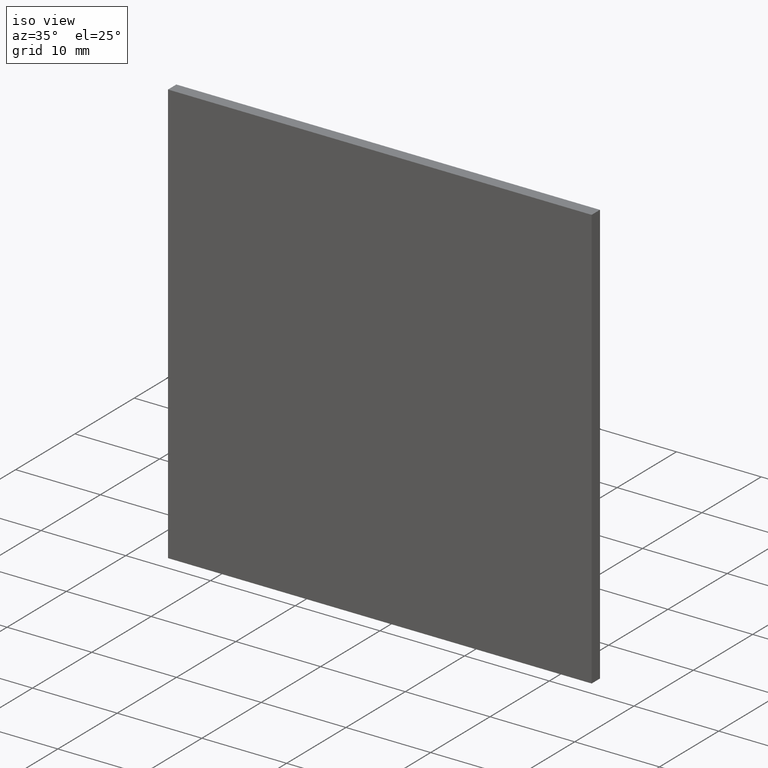
[diagram: clean part render]
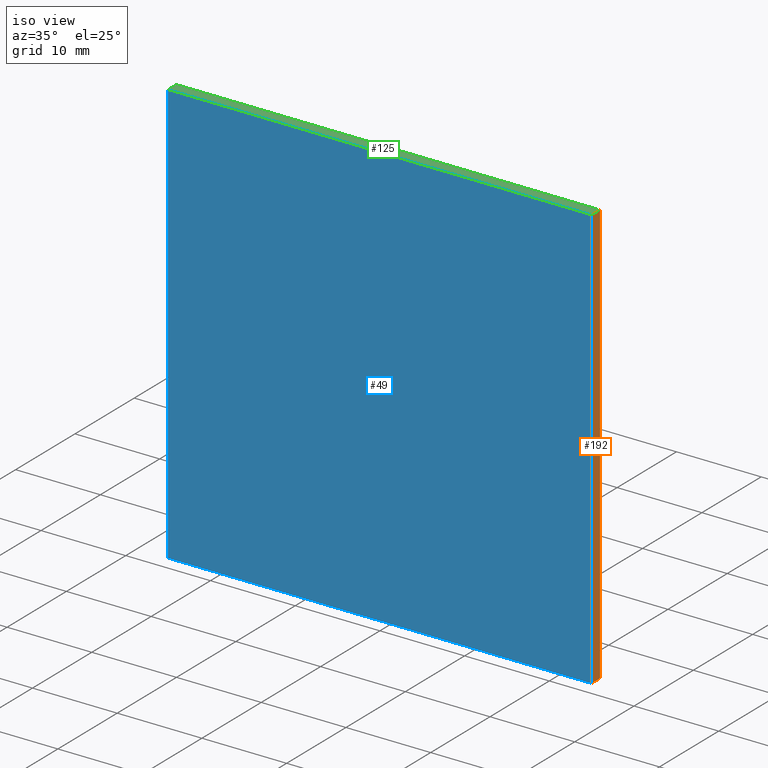
[diagram: same view with three faces highlighted in distinct colors, each labeled with its STEP entity id]
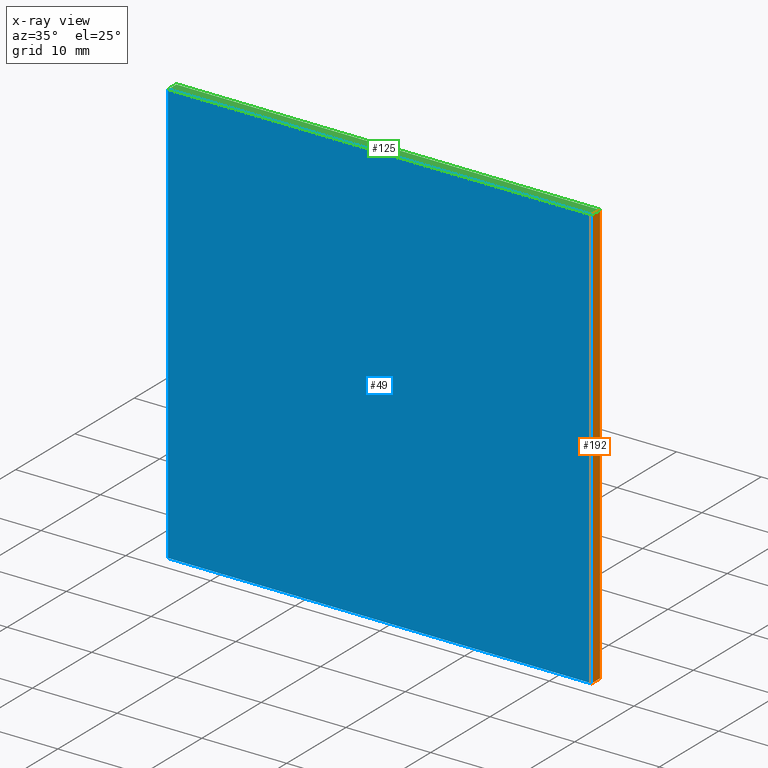
[diagram: x-ray of the same camera — body ghosted, the three highlighted faces saturated]
A machine part, iso view with three faces highlighted in distinct colors.
The next image is the same camera in x-ray (body ghosted, the three faces saturated) — at least one of them is partly hidden behind the body in this view.
Their STEP definitions:

[orange] entity #192 — the highlighted planar face has unit normal (-1, 0, 0).
#5 = VECTOR ( 'NONE', #168, 1000.000000000000000 ) ;
#21 = PLANE ( 'NONE',  #177 ) ;
#28 = DIRECTION ( 'NONE',  ( 0.0000000000000000000, 0.0000000000000000000, 1.000000000000000000 ) ) ;
#35 = ORIENTED_EDGE ( 'NONE', *, *, #82, .F. ) ;
#37 = DIRECTION ( 'NONE',  ( 0.0000000000000000000, 0.0000000000000000000, -1.000000000000000000 ) ) ;
#53 = EDGE_LOOP ( 'NONE', ( #176, #35, #113, #154 ) ) ;
#59 = LINE ( 'NONE', #165, #5 ) ;
#61 = DIRECTION ( 'NONE',  ( 0.0000000000000000000, 0.0000000000000000000, -1.000000000000000000 ) ) ;
#71 = CARTESIAN_POINT ( 'NONE',  ( 24.99999999999999600, 1.399999999999999900, 24.99999999999999600 ) ) ;
#77 = VERTEX_POINT ( 'NONE', #152 ) ;
#82 = EDGE_CURVE ( 'NONE', #148, #156, #59, .T. ) ;
#86 = DIRECTION ( 'NONE',  ( -1.000000000000000000, 0.0000000000000000000, 0.0000000000000000000 ) ) ;
#95 = CARTESIAN_POINT ( 'NONE',  ( 24.99999999999999600, 1.399999999999999900, 24.99999999999999600 ) ) ;
#105 = CARTESIAN_POINT ( 'NONE',  ( 24.99999999999999600, 0.0000000000000000000, 24.99999999999999600 ) ) ;
#110 = FACE_OUTER_BOUND ( 'NONE', #53, .T. ) ;
#111 = EDGE_CURVE ( 'NONE', #77, #156, #118, .T. ) ;
#112 = VECTOR ( 'NONE', #115, 1000.000000000000000 ) ;
#113 = ORIENTED_EDGE ( 'NONE', *, *, #169, .F. ) ;
#115 = DIRECTION ( 'NONE',  ( -0.0000000000000000000, -1.000000000000000000, -0.0000000000000000000 ) ) ;
#118 = LINE ( 'NONE', #105, #132 ) ;
#128 = EDGE_CURVE ( 'NONE', #193, #77, #170, .T. ) ;
#132 = VECTOR ( 'NONE', #61, 1000.000000000000000 ) ;
#148 = VERTEX_POINT ( 'NONE', #182 ) ;
#152 = CARTESIAN_POINT ( 'NONE',  ( 24.99999999999999600, 0.0000000000000000000, 24.99999999999999600 ) ) ;
#154 = ORIENTED_EDGE ( 'NONE', *, *, #128, .T. ) ;
#156 = VERTEX_POINT ( 'NONE', #178 ) ;
#165 = CARTESIAN_POINT ( 'NONE',  ( 24.99999999999999600, 1.399999999999999900, -25.00000000000000400 ) ) ;
#166 = LINE ( 'NONE', #202, #174 ) ;
#167 = CARTESIAN_POINT ( 'NONE',  ( 24.99999999999999600, 1.399999999999999900, 24.99999999999999600 ) ) ;
#168 = DIRECTION ( 'NONE',  ( -0.0000000000000000000, -1.000000000000000000, -0.0000000000000000000 ) ) ;
#169 = EDGE_CURVE ( 'NONE', #193, #148, #166, .T. ) ;
#170 = LINE ( 'NONE', #167, #112 ) ;
#174 = VECTOR ( 'NONE', #37, 1000.000000000000000 ) ;
#176 = ORIENTED_EDGE ( 'NONE', *, *, #111, .T. ) ;
#177 = AXIS2_PLACEMENT_3D ( 'NONE', #71, #86, #28 ) ;
#178 = CARTESIAN_POINT ( 'NONE',  ( 24.99999999999999600, 0.0000000000000000000, -25.00000000000000400 ) ) ;
#182 = CARTESIAN_POINT ( 'NONE',  ( 24.99999999999999600, 1.399999999999999900, -25.00000000000000400 ) ) ;
#192 = ADVANCED_FACE ( 'NONE', ( #110 ), #21, .F. ) ;
#193 = VERTEX_POINT ( 'NONE', #95 ) ;
#202 = CARTESIAN_POINT ( 'NONE',  ( 24.99999999999999600, 1.399999999999999900, 24.99999999999999600 ) ) ;

[blue] entity #49 — the highlighted planar face has unit normal (0, -1, 0).
#6 = CARTESIAN_POINT ( 'NONE',  ( -25.00000000000000400, 0.0000000000000000000, 24.99999999999999600 ) ) ;
#25 = DIRECTION ( 'NONE',  ( 1.000000000000000000, 0.0000000000000000000, 0.0000000000000000000 ) ) ;
#26 = DIRECTION ( 'NONE',  ( 0.0000000000000000000, -0.0000000000000000000, -1.000000000000000000 ) ) ;
#30 = EDGE_LOOP ( 'NONE', ( #90, #47, #108, #122 ) ) ;
#32 = VECTOR ( 'NONE', #186, 1000.000000000000000 ) ;
#36 = PLANE ( 'NONE',  #52 ) ;
#47 = ORIENTED_EDGE ( 'NONE', *, *, #119, .F. ) ;
#49 = ADVANCED_FACE ( 'NONE', ( #199 ), #36, .T. ) ;
#52 = AXIS2_PLACEMENT_3D ( 'NONE', #188, #145, #26 ) ;
#61 = DIRECTION ( 'NONE',  ( 0.0000000000000000000, 0.0000000000000000000, -1.000000000000000000 ) ) ;
#69 = VERTEX_POINT ( 'NONE', #85 ) ;
#77 = VERTEX_POINT ( 'NONE', #152 ) ;
#85 = CARTESIAN_POINT ( 'NONE',  ( -25.00000000000000400, 0.0000000000000000000, 24.99999999999999600 ) ) ;
#88 = LINE ( 'NONE', #189, #100 ) ;
#90 = ORIENTED_EDGE ( 'NONE', *, *, #111, .F. ) ;
#97 = EDGE_CURVE ( 'NONE', #158, #69, #102, .T. ) ;
#100 = VECTOR ( 'NONE', #114, 1000.000000000000000 ) ;
#102 = LINE ( 'NONE', #150, #32 ) ;
#105 = CARTESIAN_POINT ( 'NONE',  ( 24.99999999999999600, 0.0000000000000000000, 24.99999999999999600 ) ) ;
#108 = ORIENTED_EDGE ( 'NONE', *, *, #97, .F. ) ;
#111 = EDGE_CURVE ( 'NONE', #77, #156, #118, .T. ) ;
#114 = DIRECTION ( 'NONE',  ( -1.000000000000000000, -0.0000000000000000000, -0.0000000000000000000 ) ) ;
#118 = LINE ( 'NONE', #105, #132 ) ;
#119 = EDGE_CURVE ( 'NONE', #69, #77, #126, .T. ) ;
#122 = ORIENTED_EDGE ( 'NONE', *, *, #139, .F. ) ;
#126 = LINE ( 'NONE', #6, #129 ) ;
#129 = VECTOR ( 'NONE', #25, 1000.000000000000000 ) ;
#132 = VECTOR ( 'NONE', #61, 1000.000000000000000 ) ;
#139 = EDGE_CURVE ( 'NONE', #156, #158, #88, .T. ) ;
#145 = DIRECTION ( 'NONE',  ( 0.0000000000000000000, -1.000000000000000000, 0.0000000000000000000 ) ) ;
#150 = CARTESIAN_POINT ( 'NONE',  ( -25.00000000000000400, 0.0000000000000000000, 24.99999999999999600 ) ) ;
#152 = CARTESIAN_POINT ( 'NONE',  ( 24.99999999999999600, 0.0000000000000000000, 24.99999999999999600 ) ) ;
#156 = VERTEX_POINT ( 'NONE', #178 ) ;
#158 = VERTEX_POINT ( 'NONE', #180 ) ;
#178 = CARTESIAN_POINT ( 'NONE',  ( 24.99999999999999600, 0.0000000000000000000, -25.00000000000000400 ) ) ;
#180 = CARTESIAN_POINT ( 'NONE',  ( -25.00000000000000400, 0.0000000000000000000, -25.00000000000000400 ) ) ;
#186 = DIRECTION ( 'NONE',  ( -0.0000000000000000000, -0.0000000000000000000, 1.000000000000000000 ) ) ;
#188 = CARTESIAN_POINT ( 'NONE',  ( 0.0000000000000000000, 0.0000000000000000000, 0.0000000000000000000 ) ) ;
#189 = CARTESIAN_POINT ( 'NONE',  ( -25.00000000000000400, 0.0000000000000000000, -25.00000000000000400 ) ) ;
#199 = FACE_OUTER_BOUND ( 'NONE', #30, .T. ) ;

[green] entity #125 — the highlighted planar face has unit normal (0, 0, -1).
#2 = LINE ( 'NONE', #22, #84 ) ;
#4 = FACE_OUTER_BOUND ( 'NONE', #55, .T. ) ;
#6 = CARTESIAN_POINT ( 'NONE',  ( -25.00000000000000400, 0.0000000000000000000, 24.99999999999999600 ) ) ;
#15 = VECTOR ( 'NONE', #136, 1000.000000000000000 ) ;
#16 = DIRECTION ( 'NONE',  ( -1.000000000000000000, 0.0000000000000000000, -0.0000000000000000000 ) ) ;
#17 = DIRECTION ( 'NONE',  ( 0.0000000000000000000, 0.0000000000000000000, -1.000000000000000000 ) ) ;
#22 = CARTESIAN_POINT ( 'NONE',  ( -25.00000000000000400, 1.399999999999999900, 24.99999999999999600 ) ) ;
#25 = DIRECTION ( 'NONE',  ( 1.000000000000000000, 0.0000000000000000000, 0.0000000000000000000 ) ) ;
#40 = PLANE ( 'NONE',  #64 ) ;
#48 = EDGE_CURVE ( 'NONE', #74, #69, #2, .T. ) ;
#55 = EDGE_LOOP ( 'NONE', ( #60, #89, #109, #173 ) ) ;
#60 = ORIENTED_EDGE ( 'NONE', *, *, #119, .T. ) ;
#64 = AXIS2_PLACEMENT_3D ( 'NONE', #151, #17, #16 ) ;
#67 = LINE ( 'NONE', #147, #15 ) ;
#69 = VERTEX_POINT ( 'NONE', #85 ) ;
#70 = CARTESIAN_POINT ( 'NONE',  ( -25.00000000000000400, 1.399999999999999900, 24.99999999999999600 ) ) ;
#74 = VERTEX_POINT ( 'NONE', #70 ) ;
#77 = VERTEX_POINT ( 'NONE', #152 ) ;
#84 = VECTOR ( 'NONE', #146, 1000.000000000000000 ) ;
#85 = CARTESIAN_POINT ( 'NONE',  ( -25.00000000000000400, 0.0000000000000000000, 24.99999999999999600 ) ) ;
#89 = ORIENTED_EDGE ( 'NONE', *, *, #128, .F. ) ;
#95 = CARTESIAN_POINT ( 'NONE',  ( 24.99999999999999600, 1.399999999999999900, 24.99999999999999600 ) ) ;
#109 = ORIENTED_EDGE ( 'NONE', *, *, #153, .F. ) ;
#112 = VECTOR ( 'NONE', #115, 1000.000000000000000 ) ;
#115 = DIRECTION ( 'NONE',  ( -0.0000000000000000000, -1.000000000000000000, -0.0000000000000000000 ) ) ;
#119 = EDGE_CURVE ( 'NONE', #69, #77, #126, .T. ) ;
#125 = ADVANCED_FACE ( 'NONE', ( #4 ), #40, .F. ) ;
#126 = LINE ( 'NONE', #6, #129 ) ;
#128 = EDGE_CURVE ( 'NONE', #193, #77, #170, .T. ) ;
#129 = VECTOR ( 'NONE', #25, 1000.000000000000000 ) ;
#136 = DIRECTION ( 'NONE',  ( 1.000000000000000000, 0.0000000000000000000, 0.0000000000000000000 ) ) ;
#146 = DIRECTION ( 'NONE',  ( -0.0000000000000000000, -1.000000000000000000, -0.0000000000000000000 ) ) ;
#147 = CARTESIAN_POINT ( 'NONE',  ( -25.00000000000000400, 1.399999999999999900, 24.99999999999999600 ) ) ;
#151 = CARTESIAN_POINT ( 'NONE',  ( -25.00000000000000400, 1.399999999999999900, 24.99999999999999600 ) ) ;
#152 = CARTESIAN_POINT ( 'NONE',  ( 24.99999999999999600, 0.0000000000000000000, 24.99999999999999600 ) ) ;
#153 = EDGE_CURVE ( 'NONE', #74, #193, #67, .T. ) ;
#167 = CARTESIAN_POINT ( 'NONE',  ( 24.99999999999999600, 1.399999999999999900, 24.99999999999999600 ) ) ;
#170 = LINE ( 'NONE', #167, #112 ) ;
#173 = ORIENTED_EDGE ( 'NONE', *, *, #48, .T. ) ;
#193 = VERTEX_POINT ( 'NONE', #95 ) ;